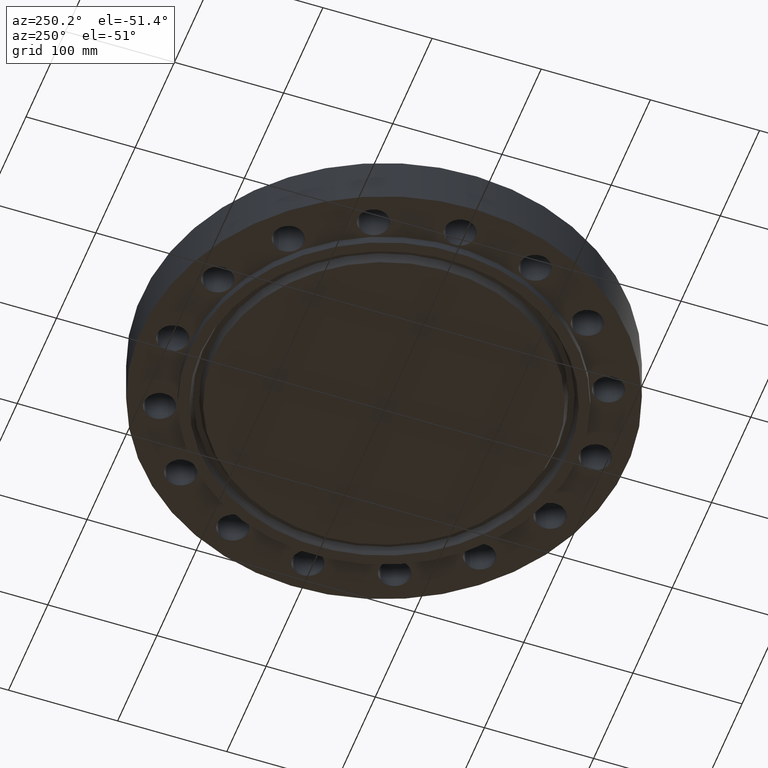
[diagram: clean part render]
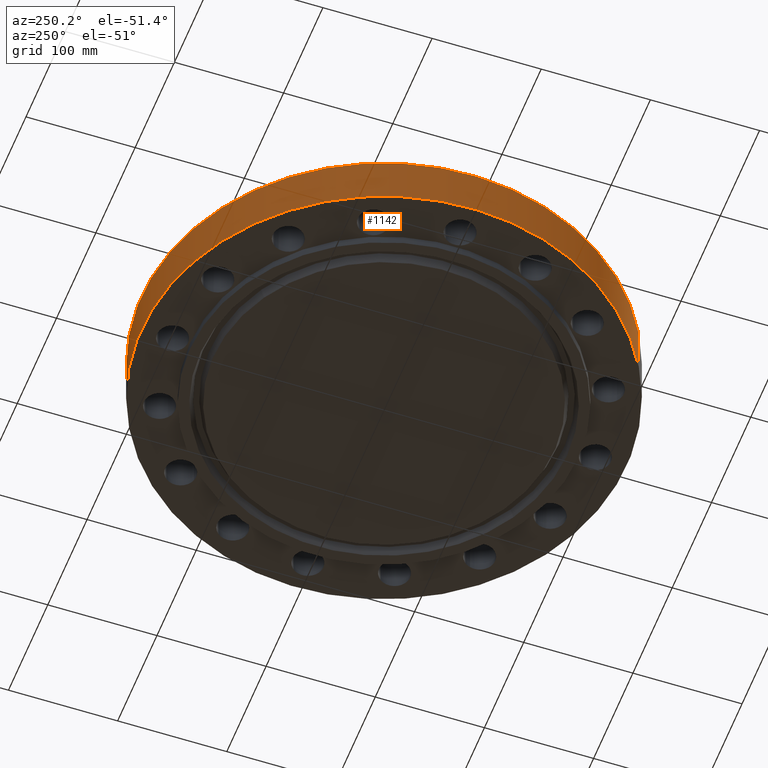
[diagram: same view with one face highlighted and labeled with its STEP entity id]
A machine part, auxiliary view. The second image highlights one B-rep face of the part: STEP entity #1142.
In plain terms, the highlighted cylindrical surface (partial cylindrical patch) has radius 222.25 mm, axis along (0, 0, -1).
Its self-contained STEP definition (entity closure, byte-faithful):
#958=AXIS2_PLACEMENT_3D('Circle Axis2P3D',#956,#957,$) ;
#1103=AXIS2_PLACEMENT_3D('Cylinder Axis2P3D',#1100,#1101,#1102) ;
#1133=AXIS2_PLACEMENT_3D('Circle Axis2P3D',#1131,#1132,$) ;
#956=CARTESIAN_POINT('Axis2P3D Location',(0.,0.,0.)) ;
#960=CARTESIAN_POINT('Vertex',(-4.1949734628,-7.67884741657,1.39870617276E-015)) ;
#962=CARTESIAN_POINT('Vertex',(4.1949734628,7.67884741657,1.39870617276E-015)) ;
#1100=CARTESIAN_POINT('Axis2P3D Location',(0.,0.,0.748750000003)) ;
#1105=CARTESIAN_POINT('Line Origine',(4.1949734628,7.67884741657,0.905000000004)) ;
#1109=CARTESIAN_POINT('Vertex',(4.1949734628,7.67884741657,1.81000000001)) ;
#1116=CARTESIAN_POINT('Vertex',(-4.1949734628,-7.67884741657,1.81000000001)) ;
#1119=CARTESIAN_POINT('Line Origine',(-4.1949734628,-7.67884741657,0.905000000004)) ;
#1131=CARTESIAN_POINT('Axis2P3D Location',(0.,0.,1.81000000001)) ;
#957=DIRECTION('Axis2P3D Direction',(0.,0.,-0.0393700787402)) ;
#1101=DIRECTION('Axis2P3D Direction',(0.,0.,-0.0393700787402)) ;
#1102=DIRECTION('Axis2P3D XDirection',(-0.0188750212049,-0.0345504945626,0.)) ;
#1106=DIRECTION('Vector Direction',(0.,0.,-0.0393700787402)) ;
#1120=DIRECTION('Vector Direction',(0.,0.,-0.0393700787402)) ;
#1132=DIRECTION('Axis2P3D Direction',(0.,0.,-0.0393700787402)) ;
#1107=VECTOR('Line Direction',#1106,0.0393700787402) ;
#1121=VECTOR('Line Direction',#1120,0.0393700787402) ;
#1137=ORIENTED_EDGE('',*,*,#964,.F.) ;
#1138=ORIENTED_EDGE('',*,*,#1123,.T.) ;
#1139=ORIENTED_EDGE('',*,*,#1135,.T.) ;
#1140=ORIENTED_EDGE('',*,*,#1111,.F.) ;
#1142=ADVANCED_FACE('PartBody',(#1141),#1104,.T.) ;
#959=CIRCLE('generated circle',#958,8.75000000003) ;
#1134=CIRCLE('generated circle',#1133,8.75000000003) ;
#1104=CYLINDRICAL_SURFACE('generated cylinder',#1103,8.75000000003) ;
#964=EDGE_CURVE('',#961,#963,#959,.T.) ;
#1111=EDGE_CURVE('',#963,#1110,#1108,.F.) ;
#1123=EDGE_CURVE('',#961,#1117,#1122,.F.) ;
#1135=EDGE_CURVE('',#1117,#1110,#1134,.T.) ;
#1136=EDGE_LOOP('',(#1137,#1138,#1139,#1140)) ;
#1141=FACE_OUTER_BOUND('',#1136,.T.) ;
#1108=LINE('Line',#1105,#1107) ;
#1122=LINE('Line',#1119,#1121) ;
#961=VERTEX_POINT('',#960) ;
#963=VERTEX_POINT('',#962) ;
#1110=VERTEX_POINT('',#1109) ;
#1117=VERTEX_POINT('',#1116) ;